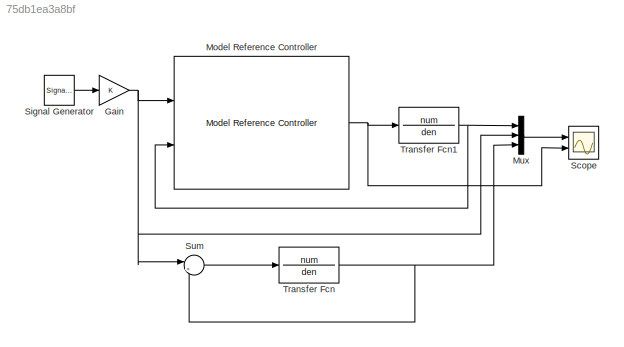
MODEL slx_75db1ea3a8bf
KIND model
BLOCK [Gain] Gain
  OutDataTypeStr = Inherit: Inherit via internal rule
  ParamDataTypeStr = Inherit: Inherit via internal rule
  SaturateOnIntegerOverflow = off
BLOCK [Reference] Model Reference Controller  REF=neural/Control Systems/Model Reference Controller
  B1 = []
  B1_c = []
  B2 = []
  B2_c = []
  IW = []
  IW_r = []
  IW_u = []
  IW_y = []
  LW1_2 = []
  LW2_1 = []
  LW_c = []
  Limit_output = []
  Ni = []
  Nic = []
  Nj = []
  Njc = []
  Normalize = []
  Nrc = []
  Ports = [2, 1]
  Ref_file = 0
  S1 = []
  S1c = []
  SourceBlock = neural/Control Systems/Model Reference Controller
  SourceType = NN Model Reference Control
  Ts = []
  Use_Inc_training = []
  Use_Testing = []
  Use_previous_weights = []
  Use_validation = []
  epochs = []
  epochs_c = []
  max_i = []
  max_i_int = []
  max_output = []
  max_r = []
  max_r_int = []
  maxp = []
  maxt = []
  min_i = []
  min_i_int = []
  min_output = []
  min_r = []
  min_r_int = []
  minp = []
  mint = []
  retraining_c = []
  sam_training = []
  sam_training_c = []
  sim_file = 0
  trainfun = trainlm
BLOCK [Mux] Mux
  DisplayOption = bar
  Inputs = 3
  Ports = [3, 1]
BLOCK [Scope] Scope
  Floating = off
  NumInputPorts = 2
  Ports = [2]
  ShowLegends = off
  YMax = 5~5
  YMin = -5~-5
BLOCK [SignalGenerator] Signal Generator
  Ports = [0, 1]
  Units = rad/sec
BLOCK [Sum] Sum
  IconShape = round
  InputSameDT = off
  Inputs = |+-
  OutDataTypeStr = Inherit: Inherit via internal rule
  Ports = [2, 1]
  SaturateOnIntegerOverflow = off
BLOCK [TransferFcn] Transfer Fcn
  ContinuousStateAttributes = 'theta'
  Denominator = den
  Numerator = num
BLOCK [TransferFcn] Transfer Fcn1
  ContinuousStateAttributes = 'theta'
  Denominator = den
  Numerator = num
NET Gain:1 -> Model Reference Controller:1, Mux:2, Sum:1
NET Model Reference Controller:1 -> Scope:2, Transfer Fcn1:1
LINE Mux:1 -> Scope:1
LINE Signal Generator:1 -> Gain:1
LINE Sum:1 -> Transfer Fcn:1
NET Transfer Fcn1:1 -> Model Reference Controller:2, Mux:1
NET Transfer Fcn:1 -> Mux:3, Sum:2
note: NET lines group one-source signal fan-out (src -> all destinations, sorted); 1:1 wires keep LINE
